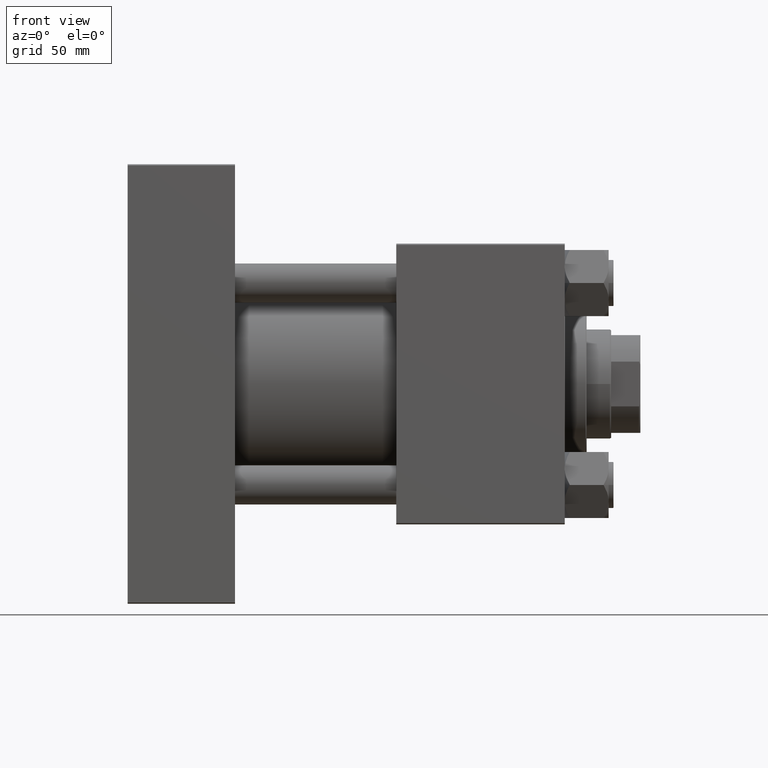
[diagram: clean part render]
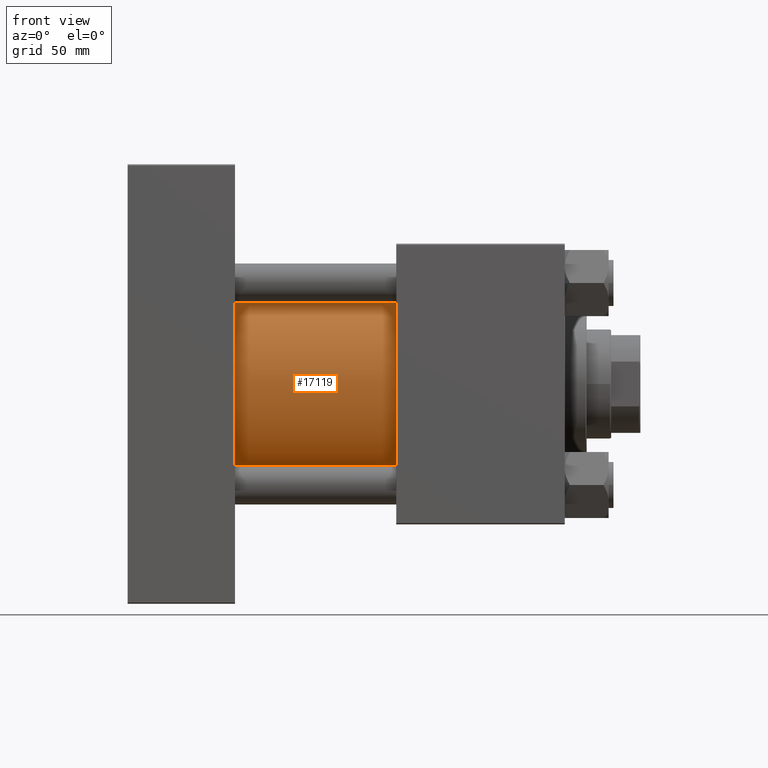
[diagram: same view with one face highlighted and labeled with its STEP entity id]
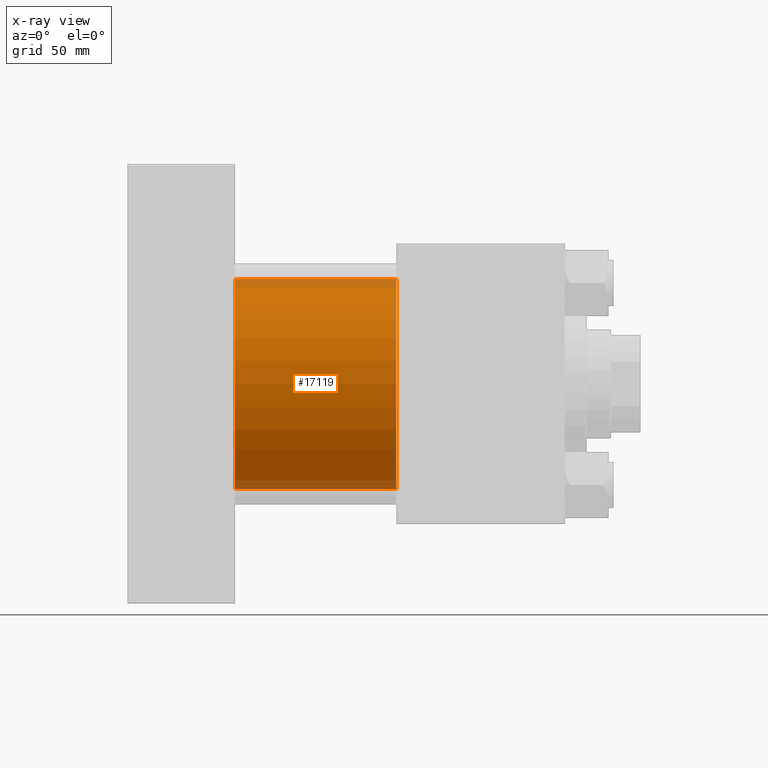
[diagram: x-ray of the same camera — body ghosted, the highlighted face saturated]
A machine part, front view. The second image highlights one B-rep face of the part: STEP entity #17119.
The next image is the same camera in x-ray: the body ghosted, the highlighted face saturated — about 8% of this face is hidden behind the body in this view.
In plain terms, the highlighted cylindrical surface (partial cylindrical patch) has radius 43 mm, axis along (-1, -0, -0).
Its self-contained STEP definition (entity closure, byte-faithful):
#848 = CARTESIAN_POINT ( 'NONE',  ( 110.0000000000000000, -2.602085213965210642E-15, 43.00000000000000000 ) ) ;
#2070 = DIRECTION ( 'NONE',  ( 0.000000000000000000, 0.000000000000000000, -1.000000000000000000 ) ) ;
#3958 = FACE_OUTER_BOUND ( 'NONE', #36707, .T. ) ;
#4948 = AXIS2_PLACEMENT_3D ( 'NONE', #23353, #42962, #46799 ) ;
#6744 = CIRCLE ( 'NONE', #45007, 43.00000000000000000 ) ;
#7795 = CYLINDRICAL_SURFACE ( 'NONE', #4948, 43.00000000000000000 ) ;
#9518 = CARTESIAN_POINT ( 'NONE',  ( 44.00000000000000000, -2.602085213965210642E-15, 43.00000000000000000 ) ) ;
#10837 = CARTESIAN_POINT ( 'NONE',  ( 44.00000000000000000, 2.663896022368408223E-15, -43.00000000000000000 ) ) ;
#12066 = LINE ( 'NONE', #34797, #16445 ) ;
#12657 = AXIS2_PLACEMENT_3D ( 'NONE', #39993, #35914, #43808 ) ;
#16445 = VECTOR ( 'NONE', #42915, 1000.000000000000000 ) ;
#17119 = ADVANCED_FACE ( 'NONE', ( #3958 ), #7795, .T. ) ;
#17608 = CARTESIAN_POINT ( 'NONE',  ( 110.0000000000000000, 2.663896022368408223E-15, -43.00000000000000000 ) ) ;
#17775 = LINE ( 'NONE', #48634, #47711 ) ;
#20117 = EDGE_CURVE ( 'NONE', #21052, #36252, #12066, .T. ) ;
#21052 = VERTEX_POINT ( 'NONE', #848 ) ;
#21356 = DIRECTION ( 'NONE',  ( -1.000000000000000000, -0.000000000000000000, -0.000000000000000000 ) ) ;
#23353 = CARTESIAN_POINT ( 'NONE',  ( 110.0000000000000000, -2.602085213965210642E-15, 0.000000000000000000 ) ) ;
#25632 = EDGE_CURVE ( 'NONE', #21052, #38147, #6744, .T. ) ;
#33678 = EDGE_CURVE ( 'NONE', #38147, #41619, #17775, .T. ) ;
#34797 = CARTESIAN_POINT ( 'NONE',  ( 110.0000000000000000, -2.602085213965210642E-15, 43.00000000000000000 ) ) ;
#35464 = EDGE_CURVE ( 'NONE', #36252, #41619, #41175, .T. ) ;
#35914 = DIRECTION ( 'NONE',  ( 1.000000000000000000, -0.000000000000000000, 0.000000000000000000 ) ) ;
#36252 = VERTEX_POINT ( 'NONE', #9518 ) ;
#36707 = EDGE_LOOP ( 'NONE', ( #46922, #42359, #48475, #44319 ) ) ;
#37007 = DIRECTION ( 'NONE',  ( 1.000000000000000000, 0.000000000000000000, 0.000000000000000000 ) ) ;
#38147 = VERTEX_POINT ( 'NONE', #17608 ) ;
#39993 = CARTESIAN_POINT ( 'NONE',  ( 44.00000000000000000, -2.602085213965210642E-15, 0.000000000000000000 ) ) ;
#41175 = CIRCLE ( 'NONE', #12657, 43.00000000000000000 ) ;
#41619 = VERTEX_POINT ( 'NONE', #10837 ) ;
#42359 = ORIENTED_EDGE ( 'NONE', *, *, #25632, .F. ) ;
#42915 = DIRECTION ( 'NONE',  ( -1.000000000000000000, -0.000000000000000000, -0.000000000000000000 ) ) ;
#42962 = DIRECTION ( 'NONE',  ( -1.000000000000000000, -0.000000000000000000, -0.000000000000000000 ) ) ;
#43808 = DIRECTION ( 'NONE',  ( 0.000000000000000000, 0.000000000000000000, 1.000000000000000000 ) ) ;
#44319 = ORIENTED_EDGE ( 'NONE', *, *, #35464, .T. ) ;
#45007 = AXIS2_PLACEMENT_3D ( 'NONE', #48980, #37007, #2070 ) ;
#46799 = DIRECTION ( 'NONE',  ( 0.000000000000000000, 0.000000000000000000, 1.000000000000000000 ) ) ;
#46922 = ORIENTED_EDGE ( 'NONE', *, *, #33678, .F. ) ;
#47711 = VECTOR ( 'NONE', #21356, 1000.000000000000000 ) ;
#48475 = ORIENTED_EDGE ( 'NONE', *, *, #20117, .T. ) ;
#48634 = CARTESIAN_POINT ( 'NONE',  ( 110.0000000000000000, 2.663896022368408223E-15, -43.00000000000000000 ) ) ;
#48980 = CARTESIAN_POINT ( 'NONE',  ( 110.0000000000000000, -2.602085213965210642E-15, 0.000000000000000000 ) ) ;